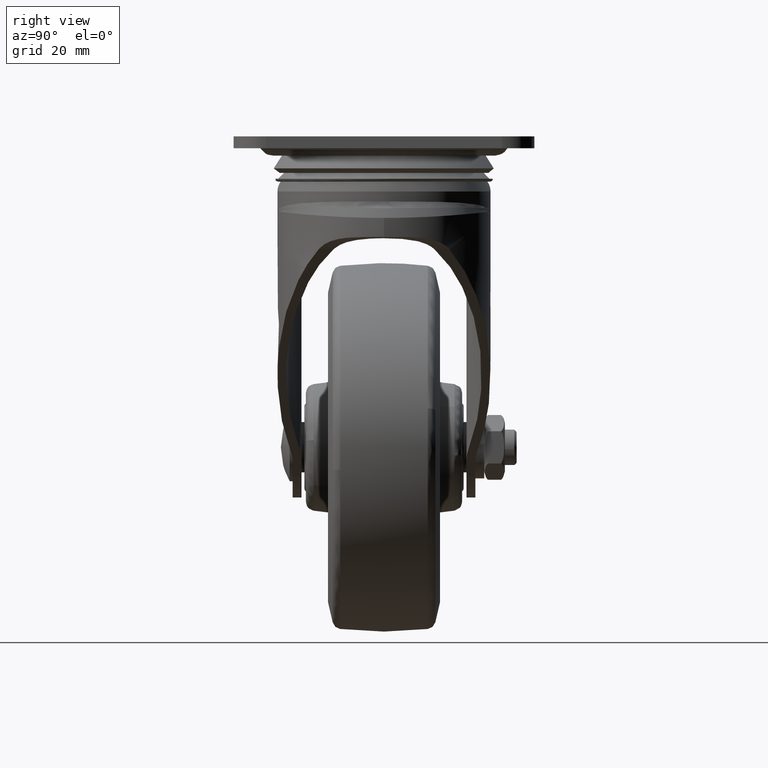
[diagram: clean part render]
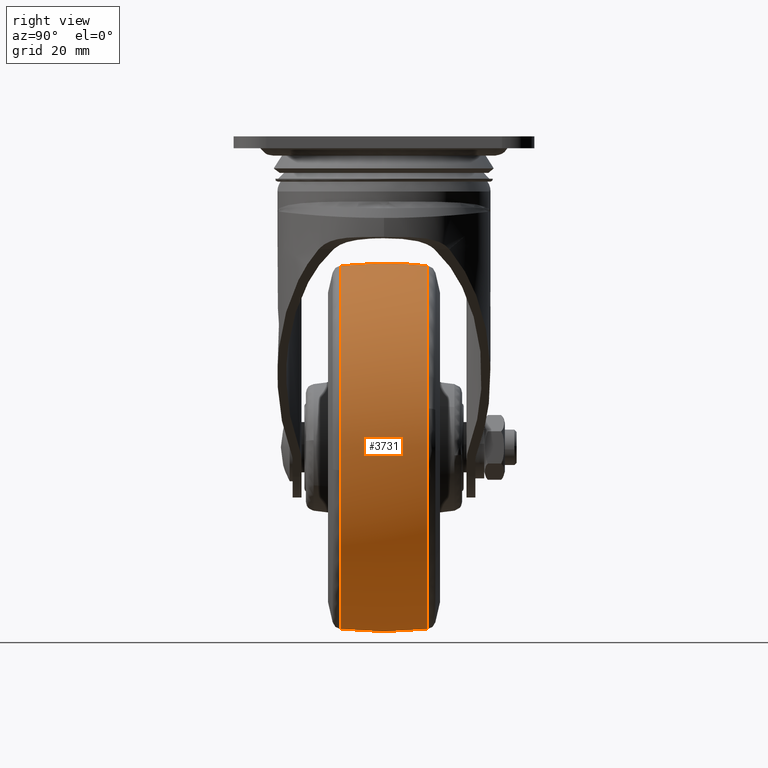
[diagram: same view with one face highlighted and labeled with its STEP entity id]
A machine part, right view. The second image highlights one B-rep face of the part: STEP entity #3731.
In plain terms, the highlighted face is a freeform B-spline surface patch.
Its self-contained STEP definition (entity closure, byte-faithful):
#2497=CARTESIAN_POINT('',(-99.302346181010222,14.861439632754880,-111.683627106419100));
#2498=VERTEX_POINT('',#2497);
#2512=CARTESIAN_POINT('',(-99.201345112304438,14.861436919512940,-98.385909278159005));
#2513=VERTEX_POINT('',#2512);
#2514=CARTESIAN_POINT('',(-99.201345112304438,14.861436919512938,-98.385909278159005));
#2515=CARTESIAN_POINT('',(-99.613431481356471,14.861437571494996,-101.931019339644480));
#2516=CARTESIAN_POINT('',(-99.613431394274215,14.861438303653950,-105.499999669634900));
#2517=CARTESIAN_POINT('',(-99.613431318643791,14.861438939529757,-108.599638399236910));
#2518=CARTESIAN_POINT('',(-99.302346181010222,14.861439632754879,-111.683627106419080));
#2526=(BOUNDED_CURVE()B_SPLINE_CURVE(2,(#2514,#2515,#2516,#2517,#2518),.UNSPECIFIED.,.F.,.U.)B_SPLINE_CURVE_WITH_KNOTS((3,2,3),(0.730000148657227,0.750000000000000,0.767423442683129),.UNSPECIFIED.)CURVE()GEOMETRIC_REPRESENTATION_ITEM()RATIONAL_B_SPLINE_CURVE((0.956886410784328,0.976568716657698,1.0,0.979587167158907,0.962019628901870))REPRESENTATION_ITEM(''));
#2527=EDGE_CURVE('',#2513,#2498,#2526,.T.);
#2529=CARTESIAN_POINT('',(-38.000024999999987,14.861418385091749,-43.886591201509113));
#2530=VERTEX_POINT('',#2529);
#2544=CARTESIAN_POINT('',(22.178295639415008,14.861435739113009,-92.279506115874284));
#2545=VERTEX_POINT('',#2544);
#2546=CARTESIAN_POINT('',(22.178295639415001,14.861435739113016,-92.279506115874284));
#2547=CARTESIAN_POINT('',(11.546923956182681,14.861418458952077,-43.886591069177989));
#2548=CARTESIAN_POINT('',(-38.000024999999987,14.861418385091749,-43.886591201509113));
#2556=(BOUNDED_CURVE()B_SPLINE_CURVE(2,(#2546,#2547,#2548),.UNSPECIFIED.,.F.,.U.)B_SPLINE_CURVE_WITH_KNOTS((3,3),(0.286726871505163,0.500000000000000),.UNSPECIFIED.)CURVE()GEOMETRIC_REPRESENTATION_ITEM()RATIONAL_B_SPLINE_CURVE((0.926585918377857,0.750134987634928,1.0))REPRESENTATION_ITEM(''));
#2557=EDGE_CURVE('',#2545,#2530,#2556,.T.);
#2608=CARTESIAN_POINT('',(-38.000025000000001,14.861462198893159,-167.113403552198490));
#2609=VERTEX_POINT('',#2608);
#2610=CARTESIAN_POINT('',(-38.000025000000001,14.861462198893159,-167.113403552198490));
#2611=CARTESIAN_POINT('',(23.613379036589603,14.861462258288585,-167.113403445783290));
#2612=CARTESIAN_POINT('',(23.613379638947340,14.861440425248210,-105.499997138107500));
#2613=CARTESIAN_POINT('',(23.613379704333266,14.861438055271870,-98.811862438252604));
#2614=CARTESIAN_POINT('',(22.178295639415001,14.861435739113016,-92.279506115874284));
#2622=(BOUNDED_CURVE()B_SPLINE_CURVE(2,(#2610,#2611,#2612,#2613,#2614),.UNSPECIFIED.,.F.,.U.)B_SPLINE_CURVE_WITH_KNOTS((3,2,3),(0.0,0.250000000000000,0.286726871505163),.UNSPECIFIED.)CURVE()GEOMETRIC_REPRESENTATION_ITEM()RATIONAL_B_SPLINE_CURVE((1.0,0.707106781186547,1.0,0.956971793551619,0.926585918377857))REPRESENTATION_ITEM(''));
#2623=EDGE_CURVE('',#2609,#2545,#2622,.T.);
#2625=CARTESIAN_POINT('',(-99.302346181010236,14.861439632754886,-111.683627106419080));
#2626=CARTESIAN_POINT('',(-93.711086597735516,14.861452021585320,-167.113403411491480));
#2627=CARTESIAN_POINT('',(-38.000025000000001,14.861462198893159,-167.113403552198490));
#2635=(BOUNDED_CURVE()B_SPLINE_CURVE(2,(#2625,#2626,#2627),.UNSPECIFIED.,.F.,.U.)B_SPLINE_CURVE_WITH_KNOTS((3,3),(0.767423442683130,1.0),.UNSPECIFIED.)CURVE()GEOMETRIC_REPRESENTATION_ITEM()RATIONAL_B_SPLINE_CURVE((0.962019628901868,0.727519614027642,1.0))REPRESENTATION_ITEM(''));
#2636=EDGE_CURVE('',#2498,#2609,#2635,.T.);
#2678=CARTESIAN_POINT('',(-16.182375718103629,-14.861444471835251,-47.878806588413568));
#2679=VERTEX_POINT('',#2678);
#2680=CARTESIAN_POINT('',(-38.000025000000001,-14.861443849847680,-43.886594250674079));
#2681=VERTEX_POINT('',#2680);
#2682=CARTESIAN_POINT('',(-16.182375718103629,-14.861444471835254,-47.878806588413568));
#2683=CARTESIAN_POINT('',(-26.725951138687943,-14.861443849847682,-43.886594250674086));
#2684=CARTESIAN_POINT('',(-38.000025000000001,-14.861443849847680,-43.886594250674079));
#2692=(BOUNDED_CURVE()B_SPLINE_CURVE(2,(#2682,#2683,#2684),.UNSPECIFIED.,.F.,.U.)B_SPLINE_CURVE_WITH_KNOTS((3,3),(0.439864364454616,0.500000000000000),.UNSPECIFIED.)CURVE()GEOMETRIC_REPRESENTATION_ITEM()RATIONAL_B_SPLINE_CURVE((0.892987463001345,0.929546720558879,1.0))REPRESENTATION_ITEM(''));
#2693=EDGE_CURVE('',#2679,#2681,#2692,.T.);
#2695=CARTESIAN_POINT('',(-99.201344261339244,-14.861444115349880,-98.385909419852737));
#2696=VERTEX_POINT('',#2695);
#2710=CARTESIAN_POINT('',(-38.000025000000001,-14.861462198893159,-167.113403552198490));
#2711=VERTEX_POINT('',#2710);
#2712=CARTESIAN_POINT('',(-99.201344261339244,-14.861444115349883,-98.385909419852737));
#2713=CARTESIAN_POINT('',(-99.613430647558971,-14.861444581743660,-101.931019457882430));
#2714=CARTESIAN_POINT('',(-99.613430585265064,-14.861445105491789,-105.499999763674690));
#2715=CARTESIAN_POINT('',(-99.613429509848700,-14.861454147263430,-167.113403440880460));
#2716=CARTESIAN_POINT('',(-38.000025000000001,-14.861462198893159,-167.113403552198490));
#2724=(BOUNDED_CURVE()B_SPLINE_CURVE(2,(#2712,#2713,#2714,#2715,#2716),.UNSPECIFIED.,.F.,.U.)B_SPLINE_CURVE_WITH_KNOTS((3,2,3),(0.730000148773882,0.750000000000000,1.0),.UNSPECIFIED.)CURVE()GEOMETRIC_REPRESENTATION_ITEM()RATIONAL_B_SPLINE_CURVE((0.956886411013935,0.976568716794369,1.0,0.707106781186547,1.0))REPRESENTATION_ITEM(''));
#2725=EDGE_CURVE('',#2696,#2711,#2724,.T.);
#2727=CARTESIAN_POINT('',(23.127538869085011,-14.861454258248450,-113.222207149500210));
#2728=VERTEX_POINT('',#2727);
#2729=CARTESIAN_POINT('',(-38.000025000000001,-14.861462198893159,-167.113403552198490));
#2730=CARTESIAN_POINT('',(16.319496263277880,-14.861462198893161,-167.113403552198520));
#2731=CARTESIAN_POINT('',(23.127538869085011,-14.861454258248454,-113.222207149500250));
#2739=(BOUNDED_CURVE()B_SPLINE_CURVE(2,(#2729,#2730,#2731),.UNSPECIFIED.,.F.,.U.)B_SPLINE_CURVE_WITH_KNOTS((3,3),(0.0,0.228321253873327),.UNSPECIFIED.)CURVE()GEOMETRIC_REPRESENTATION_ITEM()RATIONAL_B_SPLINE_CURVE((1.0,0.732505012118072,0.953608352540401))REPRESENTATION_ITEM(''));
#2740=EDGE_CURVE('',#2711,#2728,#2739,.T.);
#2793=CARTESIAN_POINT('',(23.127538869085011,-14.861454258248454,-113.222207149500250));
#2794=CARTESIAN_POINT('',(23.613378552198498,-14.861453601582536,-109.376386231934360));
#2795=CARTESIAN_POINT('',(23.613378552198501,-14.861453024370419,-105.499998901436300));
#2796=CARTESIAN_POINT('',(23.613378552198498,-14.861446688037471,-62.947044674517151));
#2797=CARTESIAN_POINT('',(-16.182375718103632,-14.861444471835249,-47.878806588413568));
#2805=(BOUNDED_CURVE()B_SPLINE_CURVE(2,(#2793,#2794,#2795,#2796,#2797),.UNSPECIFIED.,.F.,.U.)B_SPLINE_CURVE_WITH_KNOTS((3,2,3),(0.228321253873327,0.250000000000000,0.439864364454616),.UNSPECIFIED.)CURVE()GEOMETRIC_REPRESENTATION_ITEM()RATIONAL_B_SPLINE_CURVE((0.953608352540401,0.974601769068476,1.0,0.777560060627668,0.892987463001345))REPRESENTATION_ITEM(''));
#2806=EDGE_CURVE('',#2728,#2679,#2805,.T.);
#3638=CARTESIAN_POINT('',(-99.013987634036326,-16.359875142174900,-98.407635042650895));
#3639=CARTESIAN_POINT('',(-100.082002602067730,-8.215270012476410,-98.283487198351310));
#3640=CARTESIAN_POINT('',(-100.082002602067730,7.898711E-015,-98.283487198351324));
#3641=CARTESIAN_POINT('',(-100.082002602067730,8.215270012476420,-98.283487198351310));
#3642=CARTESIAN_POINT('',(-99.013987634036326,16.359875142174900,-98.407635042650895));
#3643=CARTESIAN_POINT('',(-99.424818666693042,-16.359875142174900,-101.941918659774390));
#3644=CARTESIAN_POINT('',(-100.500024999999990,-8.215270012476406,-101.879636454771130));
#3645=CARTESIAN_POINT('',(-100.500024999999980,7.898711E-015,-101.879636454771140));
#3646=CARTESIAN_POINT('',(-100.500024999999990,8.215270012476420,-101.879636454771130));
#3647=CARTESIAN_POINT('',(-99.424818666693056,16.359875142174907,-101.941918659774390));
#3648=CARTESIAN_POINT('',(-99.424818666693056,-16.359875142174896,-105.500000000000000));
#3649=CARTESIAN_POINT('',(-100.500024999999990,-8.215270012476408,-105.500000000000000));
#3650=CARTESIAN_POINT('',(-100.500024999999990,7.898711E-015,-105.500000000000000));
#3651=CARTESIAN_POINT('',(-100.500024999999990,8.215270012476420,-105.500000000000000));
#3652=CARTESIAN_POINT('',(-99.424818666693056,16.359875142174907,-105.500000000000000));
#3653=CARTESIAN_POINT('',(-99.424818666693071,-16.359875142174907,-166.924793666693010));
#3654=CARTESIAN_POINT('',(-100.500025000000010,-8.215270012476411,-167.999999999999940));
#3655=CARTESIAN_POINT('',(-100.500025000000010,7.898711E-015,-168.000000000000030));
#3656=CARTESIAN_POINT('',(-100.500024999999990,8.215270012476418,-167.999999999999940));
#3657=CARTESIAN_POINT('',(-99.424818666693056,16.359875142174907,-166.924793666693010));
#3658=CARTESIAN_POINT('',(-38.000024999999994,-16.359875142174896,-166.924793666693090));
#3659=CARTESIAN_POINT('',(-38.000025000000001,-8.215270012476408,-167.999999999999970));
#3660=CARTESIAN_POINT('',(-38.000025000000001,7.898711E-015,-168.0));
#3661=CARTESIAN_POINT('',(-38.000025000000001,8.215270012476420,-167.999999999999970));
#3662=CARTESIAN_POINT('',(-38.000024999999994,16.359875142174907,-166.924793666693090));
#3663=CARTESIAN_POINT('',(23.424768666693062,-16.359875142174907,-166.924793666693010));
#3664=CARTESIAN_POINT('',(24.499975000000010,-8.215270012476411,-167.999999999999940));
#3665=CARTESIAN_POINT('',(24.499975000000006,7.898711E-015,-168.000000000000030));
#3666=CARTESIAN_POINT('',(24.499974999999996,8.215270012476418,-167.999999999999940));
#3667=CARTESIAN_POINT('',(23.424768666693062,16.359875142174907,-166.924793666693010));
#3668=CARTESIAN_POINT('',(23.424768666693062,-16.359875142174896,-105.500000000000000));
#3669=CARTESIAN_POINT('',(24.499975000000003,-8.215270012476408,-105.500000000000000));
#3670=CARTESIAN_POINT('',(24.499974999999999,7.898711E-015,-105.500000000000000));
#3671=CARTESIAN_POINT('',(24.499975000000003,8.215270012476420,-105.500000000000000));
#3672=CARTESIAN_POINT('',(23.424768666693062,16.359875142174907,-105.500000000000000));
#3673=CARTESIAN_POINT('',(23.424768666693062,-16.359875142174907,-44.075206333306937));
#3674=CARTESIAN_POINT('',(24.499975000000010,-8.215270012476411,-43.0));
#3675=CARTESIAN_POINT('',(24.499975000000006,7.898711E-015,-42.999999999999993));
#3676=CARTESIAN_POINT('',(24.499974999999996,8.215270012476418,-43.0));
#3677=CARTESIAN_POINT('',(23.424768666693062,16.359875142174907,-44.075206333306937));
#3678=CARTESIAN_POINT('',(-38.000024999999994,-16.359875142174896,-44.075206333306951));
#3679=CARTESIAN_POINT('',(-38.000025000000001,-8.215270012476408,-43.000000000000014));
#3680=CARTESIAN_POINT('',(-38.000025000000001,7.898711E-015,-43.0));
#3681=CARTESIAN_POINT('',(-38.000025000000001,8.215270012476420,-43.000000000000014));
#3682=CARTESIAN_POINT('',(-38.000024999999994,16.359875142174907,-44.075206333306951));
#3690=(BOUNDED_SURFACE()B_SPLINE_SURFACE(2,2,((#3638,#3643,#3648,#3653,#3658,#3663,#3668,#3673,#3678),(#3639,#3644,#3649,#3654,#3659,#3664,#3669,#3674,#3679),(#3640,#3645,#3650,#3655,#3660,#3665,#3670,#3675,#3680),(#3641,#3646,#3651,#3656,#3661,#3666,#3671,#3676,#3681),(#3642,#3647,#3652,#3657,#3662,#3667,#3672,#3677,#3682)),.UNSPECIFIED.,.F.,.F.,.U.)B_SPLINE_SURFACE_WITH_KNOTS((3,2,3),(3,2,2,2,3),(0.0,16.647975810881331,33.295951621762647),(0.0,8.284269519228245,111.837660112501990,215.391050705775800,318.944441299049570),.UNSPECIFIED.)GEOMETRIC_REPRESENTATION_ITEM()RATIONAL_B_SPLINE_SURFACE(((0.928045369325742,0.947134557834049,0.969859781345681,0.685794428189633,0.969859781345681,0.685794428189633,0.969859781345681,0.685794428189633,0.969859781345681),(0.940326783932334,0.959668591812842,0.982694552660383,0.694869982021238,0.982694552660383,0.694869982021238,0.982694552660383,0.694869982021238,0.982694552660383),(0.956886126402807,0.976568547383107,1.0,0.707106781186548,1.0,0.707106781186548,1.0,0.707106781186548,1.0),(0.940326783932334,0.959668591812842,0.982694552660383,0.694869982021238,0.982694552660383,0.694869982021238,0.982694552660383,0.694869982021238,0.982694552660383),(0.928045369325742,0.947134557834049,0.969859781345681,0.685794428189633,0.969859781345681,0.685794428189633,0.969859781345681,0.685794428189633,0.969859781345681)))REPRESENTATION_ITEM('')SURFACE());
#3691=ORIENTED_EDGE('',*,*,#2527,.T.);
#3692=ORIENTED_EDGE('',*,*,#2636,.T.);
#3693=ORIENTED_EDGE('',*,*,#2623,.T.);
#3694=ORIENTED_EDGE('',*,*,#2557,.T.);
#3695=CARTESIAN_POINT('',(-38.000025000000001,-14.861443849847682,-43.886594250674072));
#3696=CARTESIAN_POINT('',(-38.000024999999994,-7.457167853504868,-43.0));
#3697=CARTESIAN_POINT('',(-38.000025000000001,7.898711E-015,-43.0));
#3698=CARTESIAN_POINT('',(-38.000025000000001,7.457154984536426,-43.0));
#3699=CARTESIAN_POINT('',(-38.000024999999994,14.861418385091746,-43.886591201509113));
#3707=(BOUNDED_CURVE()B_SPLINE_CURVE(2,(#3695,#3696,#3697,#3698,#3699),.UNSPECIFIED.,.F.,.U.)B_SPLINE_CURVE_WITH_KNOTS((3,2,3),(0.441281283883758,0.500000000000000,0.558718616378616),.UNSPECIFIED.)CURVE()GEOMETRIC_REPRESENTATION_ITEM()RATIONAL_B_SPLINE_CURVE((0.972228169688118,0.984266367436061,1.0,0.984266394160677,0.972228210583480))REPRESENTATION_ITEM(''));
#3708=EDGE_CURVE('',#2681,#2530,#3707,.T.);
#3709=ORIENTED_EDGE('',*,*,#3708,.F.);
#3710=ORIENTED_EDGE('',*,*,#2693,.F.);
#3711=ORIENTED_EDGE('',*,*,#2806,.F.);
#3712=ORIENTED_EDGE('',*,*,#2740,.F.);
#3713=ORIENTED_EDGE('',*,*,#2725,.F.);
#3714=CARTESIAN_POINT('',(-99.201344261339244,-14.861444115349883,-98.385909419852737));
#3715=CARTESIAN_POINT('',(-100.082008679766740,-7.457167987679913,-98.283539483788601));
#3716=CARTESIAN_POINT('',(-100.082008678535560,-5.516338E-014,-98.283539473199625));
#3717=CARTESIAN_POINT('',(-100.082008677304390,7.457164351163504,-98.283539462610648));
#3718=CARTESIAN_POINT('',(-99.201345112304423,14.861436919512945,-98.385909278159005));
#3726=(BOUNDED_CURVE()B_SPLINE_CURVE(2,(#3714,#3715,#3716,#3717,#3718),.UNSPECIFIED.,.F.,.U.)B_SPLINE_CURVE_WITH_KNOTS((3,2,3),(0.441281282843847,0.500000000000000,0.558718688972271),.UNSPECIFIED.)CURVE()GEOMETRIC_REPRESENTATION_ITEM()RATIONAL_B_SPLINE_CURVE((0.930311638880463,0.941830823334884,0.956886118190660,0.941830830561143,0.930311649938449))REPRESENTATION_ITEM(''));
#3727=EDGE_CURVE('',#2696,#2513,#3726,.T.);
#3728=ORIENTED_EDGE('',*,*,#3727,.T.);
#3729=EDGE_LOOP('',(#3691,#3692,#3693,#3694,#3709,#3710,#3711,#3712,#3713,#3728));
#3730=FACE_OUTER_BOUND('',#3729,.T.);
#3731=ADVANCED_FACE('',(#3730),#3690,.T.);